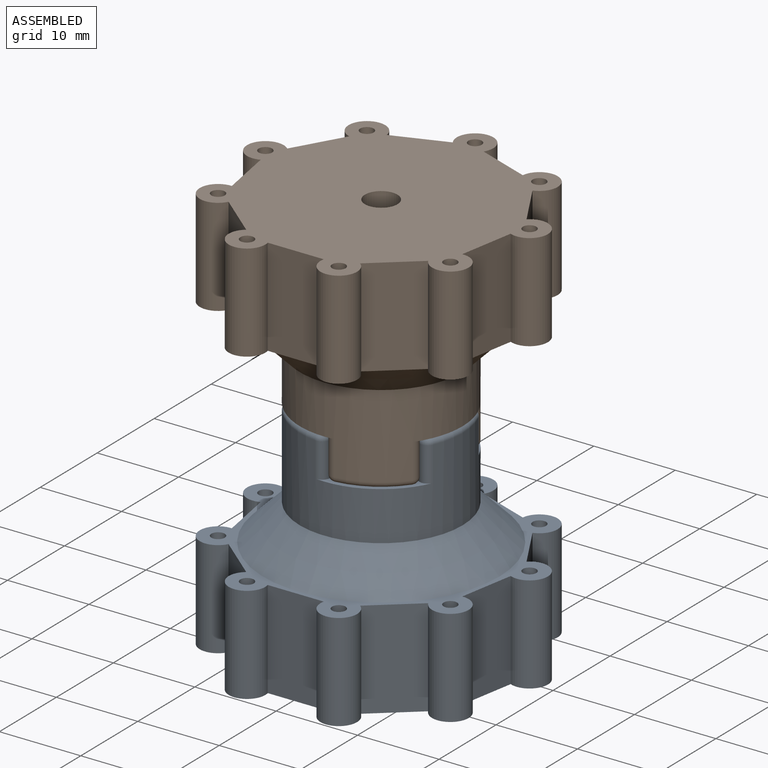
[diagram: assembled view]
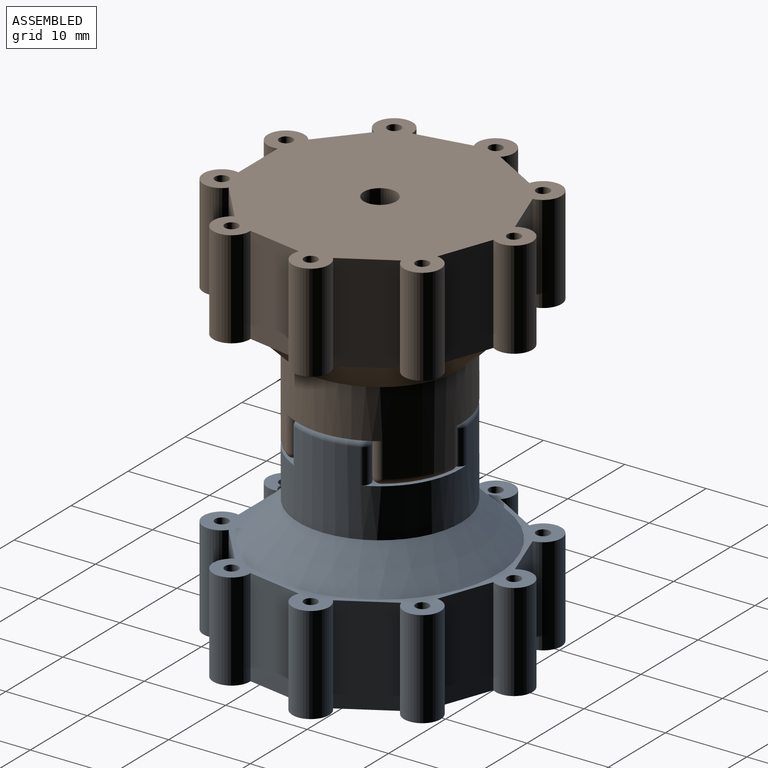
[diagram: assembled view, second angle]
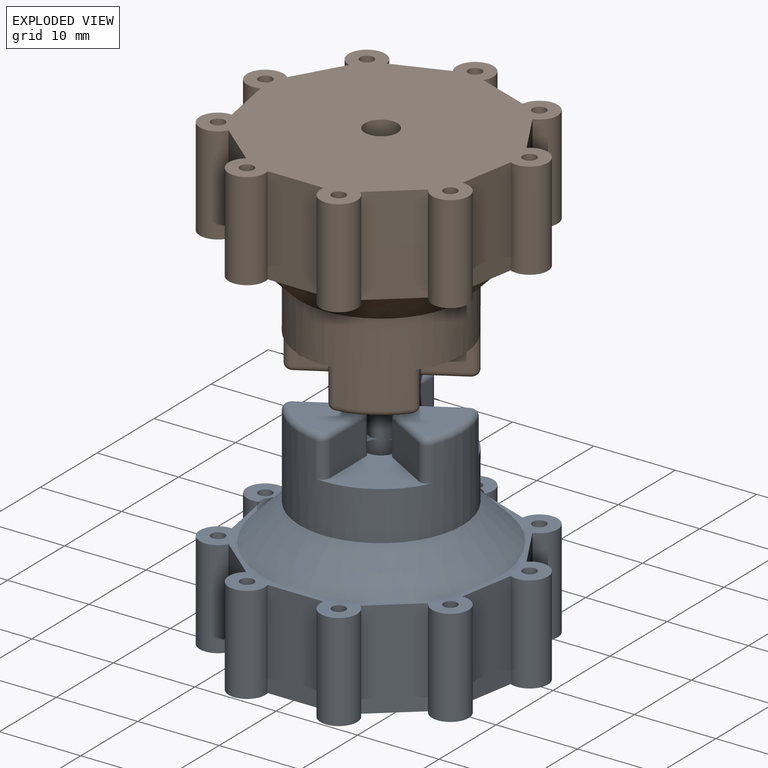
[diagram: exploded view]
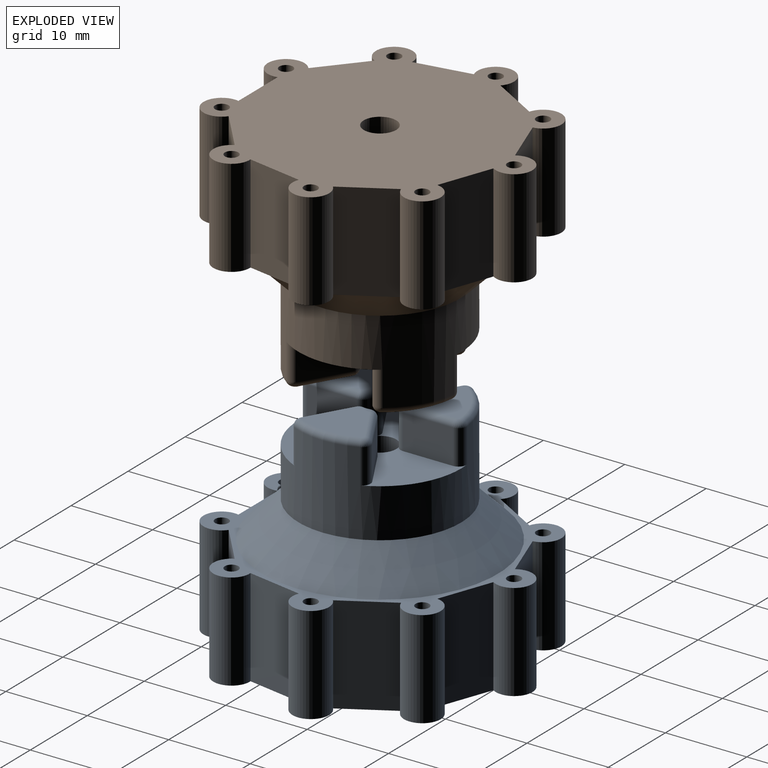
[diagram: exploded view, second angle]
ASSEMBLY  parts=2 mates=3
PART A: 80 faces, bbox 36.9x36.5x27.5 mm
  f0: plane 10.27x9.63mm, normal (0,0,1), area 51mm2, adj f29,f32,f38,f40,f43,f48,f49,f54
  f1: plane 11.86x8.7mm, normal (0,0,1), area 51mm2, adj f29,f32,f35,f37,f44,f46,f50,f52
  f2: cylinder r=2.25mm len=12mm, axis (0,0,-1), area 115.8mm2, adj f3,f27,f30,f31
  f3: plane 12x6.47mm, normal (0.34,0.94,0), area 82.6mm2, adj f2,f4,f30,f31
  f4: cylinder r=2.25mm len=12mm, axis (0,0,-1), area 115.8mm2, adj f3,f5,f30,f31
  f5: plane 12x6.47mm, normal (-0.34,0.94,0), area 82.6mm2, adj f4,f6,f30,f31
  f6: cylinder r=2.25mm len=12mm, axis (0,0,-1), area 115.8mm2, adj f5,f7,f30,f31
  f7: plane 12x5.96mm, normal (-0.87,0.5,0), area 82.6mm2, adj f6,f8,f30,f31
  f8: cylinder r=2.25mm len=12mm, axis (0,0,-1), area 115.8mm2, adj f7,f9,f30,f31
  f9: plane 12x6.78mm, normal (-0.98,-0.17,0), area 82.6mm2, adj f8,f10,f30,f31
  f10: cylinder r=2.25mm len=12mm, axis (0,0,-1), area 115.8mm2, adj f9,f11,f30,f31
  f11: plane 12x5.27mm, normal (-0.64,-0.77,0), area 82.6mm2, adj f10,f12,f30,f31
  f12: cylinder r=2.25mm len=12mm, axis (0,0,-1), area 115.8mm2, adj f11,f13,f30,f31
  f13: plane 12x6.88mm, normal (0,-1,0), area 82.6mm2, adj f12,f14,f30,f31
  f14: cylinder r=2.25mm len=12mm, axis (0,0,-1), area 115.8mm2, adj f13,f15,f30,f31
  f15: plane 12x5.27mm, normal (0.64,-0.77,0), area 82.6mm2, adj f14,f16,f30,f31
  f16: cylinder r=2.25mm len=12mm, axis (0,0,-1), area 115.8mm2, adj f15,f17,f30,f31
  f17: plane 12x6.78mm, normal (0.98,-0.17,0), area 82.6mm2, adj f16,f18,f30,f31
  f18: cylinder r=2.25mm len=12mm, axis (0,0,-1), area 115.8mm2, adj f17,f27,f30,f31
  f19: cylinder r=0.83mm len=12mm, axis (0,0,-1), area 62.2mm2, adj f30,f31
  f20: cylinder r=0.83mm len=12mm, axis (0,0,-1), area 62.2mm2, adj f30,f31
  f21: cylinder r=0.83mm len=12mm, axis (0,0,-1), area 62.2mm2, adj f30,f31
  f22: cylinder r=0.83mm len=12mm, axis (0,0,-1), area 62.2mm2, adj f30,f31
  f23: cylinder r=0.83mm len=12mm, axis (0,0,-1), area 62.2mm2, adj f30,f31
  f24: cylinder r=0.83mm len=12mm, axis (0,0,-1), area 62.2mm2, adj f30,f31
  f25: cylinder r=0.83mm len=12mm, axis (0,0,-1), area 62.2mm2, adj f30,f31
  f26: cylinder r=0.83mm len=12mm, axis (0,0,-1), area 62.2mm2, adj f30,f31
  f27: plane 12x5.96mm, normal (0.87,0.5,0), area 82.6mm2, adj f2,f18,f30,f31
  f28: cylinder r=0.83mm len=12mm, axis (0,0,-1), area 62.2mm2, adj f30,f31
  f29: cylinder r=2mm len=26.75mm, axis (0,0,-1), area 292.1mm2, adj f0,f1,f31,f33,f43,f44,f45,f46
  f30: plane 36.95x36.46mm, normal (0,0,1), area 162.1mm2, adj f2,f3,f4,f5,f6,f7,f8,f9
  f31: plane 36.95x36.46mm, normal (0,0,-1), area 810mm2, adj f2,f3,f4,f5,f6,f7,f8,f9
  f32: cylinder r=10mm len=20mm, axis (0,0,-1), area 482.1mm2, adj f0,f1,f33,f49,f50,f51,f52,f53
  f33: plane 10.27x9.63mm, normal (0,0,1), area 51mm2, adj f29,f32,f34,f41,f45,f47,f51,f53
  f34: plane 6.12x4.25mm, normal (1,0,0), area 26mm2, adj f33,f45,f51,f64
  f35: plane 5.3x4.25mm, normal (-0.5,-0.87,0), area 26mm2, adj f1,f46,f52,f71
  f36: plane 7.16x6.75mm, normal (0,0,1), area 31mm2, adj f64,f65,f66,f67,f68,f69,f70,f71
  f37: plane 5.3x4.25mm, normal (-0.5,0.87,0), area 26mm2, adj f1,f44,f50,f79
  f38: plane 6.12x4.25mm, normal (1,0,0), area 26mm2, adj f0,f43,f49,f72
  f39: plane 7.16x6.75mm, normal (0,0,1), area 31mm2, adj f72,f73,f74,f75,f76,f77,f78,f79
  f40: plane 5.3x4.25mm, normal (-0.5,-0.87,0), area 26mm2, adj f0,f48,f54,f56
  f41: plane 5.3x4.25mm, normal (-0.5,0.87,0), area 26mm2, adj f33,f47,f53,f63
  f42: plane 7.71x6.55mm, normal (0,0,1), area 31mm2, adj f56,f57,f58,f59,f60,f61,f62,f63
  f43: cylinder r=1mm len=4.25mm, axis (0,0,-1), area 5.2mm2, adj f0,f29,f38,f73
  f44: cylinder r=1mm len=4.25mm, axis (0,0,-1), area 5.2mm2, adj f1,f29,f37,f77
  f45: cylinder r=1mm len=4.25mm, axis (0,0,-1), area 5.2mm2, adj f29,f33,f34,f65
  f46: cylinder r=1mm len=4.25mm, axis (0,0,-1), area 5.2mm2, adj f1,f29,f35,f69
  f47: cylinder r=1mm len=4.25mm, axis (0,0,-1), area 5.2mm2, adj f29,f33,f41,f61
  f48: cylinder r=1mm len=4.25mm, axis (0,0,-1), area 5.2mm2, adj f0,f29,f40,f57
  f49: cylinder r=1mm len=4.25mm, axis (0,0,-1), area 7.1mm2, adj f0,f32,f38,f74
  f50: cylinder r=1mm len=4.25mm, axis (0,0,-1), area 7.1mm2, adj f1,f32,f37,f78
  f51: cylinder r=1mm len=4.25mm, axis (0,0,-1), area 7.1mm2, adj f32,f33,f34,f66
  f52: cylinder r=1mm len=4.25mm, axis (0,0,-1), area 7.1mm2, adj f1,f32,f35,f70
  f53: cylinder r=1mm len=4.25mm, axis (0,0,-1), area 7.1mm2, adj f32,f33,f41,f62
  f54: cylinder r=1mm len=4.25mm, axis (0,0,-1), area 7.1mm2, adj f0,f32,f40,f58
  f55: cone r=10mm half-angle=45deg, axis (0,0,-1), area 489.8mm2, adj f30,f32
  f56: cylinder r=0.75mm len=5.67mm, axis (-0.87,0.5,0), area 7.2mm2, adj f40,f42,f57,f58
  f57: torus R=0.25mm, axis (0,0,1), area 1.1mm2, adj f42,f48,f56,f59
  f58: torus R=0.25mm, axis (0,0,1), area 1.4mm2, adj f42,f54,f56,f60
  f59: torus R=2.75mm, axis (0,0,1), area 1mm2, adj f29,f42,f57,f61
  f60: torus R=9.25mm, axis (0,0,1), area 9.4mm2, adj f32,f42,f58,f62
  f61: torus R=0.25mm, axis (0,0,1), area 1.1mm2, adj f42,f47,f59,f63
  f62: torus R=0.25mm, axis (0,0,1), area 1.4mm2, adj f42,f53,f60,f63
  f63: cylinder r=0.75mm len=5.67mm, axis (0.87,0.5,0), area 7.2mm2, adj f41,f42,f61,f62
  f64: cylinder r=0.75mm len=6.12mm, axis (0,-1,0), area 7.2mm2, adj f34,f36,f65,f66
  f65: torus R=0.25mm, axis (0,0,1), area 1.1mm2, adj f36,f45,f64,f67
  f66: torus R=0.25mm, axis (0,0,1), area 1.4mm2, adj f36,f51,f64,f68
  f67: torus R=2.75mm, axis (0,0,1), area 1mm2, adj f29,f36,f65,f69
  f68: torus R=9.25mm, axis (0,0,1), area 9.4mm2, adj f32,f36,f66,f70
  f69: torus R=0.25mm, axis (0,0,1), area 1.1mm2, adj f36,f46,f67,f71
  f70: torus R=0.25mm, axis (0,0,1), area 1.4mm2, adj f36,f52,f68,f71
  f71: cylinder r=0.75mm len=5.67mm, axis (-0.87,0.5,0), area 7.2mm2, adj f35,f36,f69,f70
  f72: cylinder r=0.75mm len=6.12mm, axis (0,-1,0), area 7.2mm2, adj f38,f39,f73,f74
  f73: torus R=0.25mm, axis (0,0,1), area 1.1mm2, adj f39,f43,f72,f75
  f74: torus R=0.25mm, axis (0,0,1), area 1.4mm2, adj f39,f49,f72,f76
  f75: torus R=2.75mm, axis (0,0,1), area 1mm2, adj f29,f39,f73,f77
  f76: torus R=9.25mm, axis (0,0,1), area 9.4mm2, adj f32,f39,f74,f78
  f77: torus R=0.25mm, axis (0,0,1), area 1.1mm2, adj f39,f44,f75,f79
  f78: torus R=0.25mm, axis (0,0,1), area 1.4mm2, adj f39,f50,f76,f79
  f79: cylinder r=0.75mm len=5.67mm, axis (0.87,0.5,0), area 7.2mm2, adj f37,f39,f77,f78
PART B: same geometry as A
PLACE A t=(1.63,-3.91,-16.19)mm fixed
PLACE B rot(axis=(0.87,0.5,0),180deg) t=(1.63,-3.91,33.81)mm
MATE cylindrical B.f12 <-> A.f8  axis (0,0,1) through (-14.59,-1.05,21.81)mm
MATE planar B.f39 <-> A.f0  axis (0,0,-1) through (-4.95,-3.91,6.31)mm
MATE cylindrical B.f29 <-> A.f29  axis (0,0,1) through (1.63,-3.91,7.06)mm
